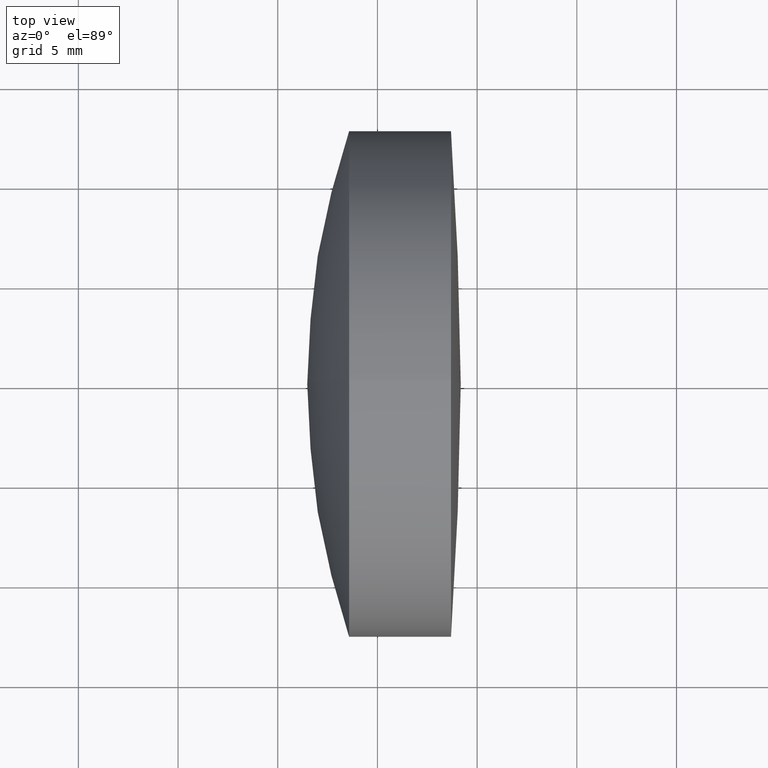
[diagram: clean part render]
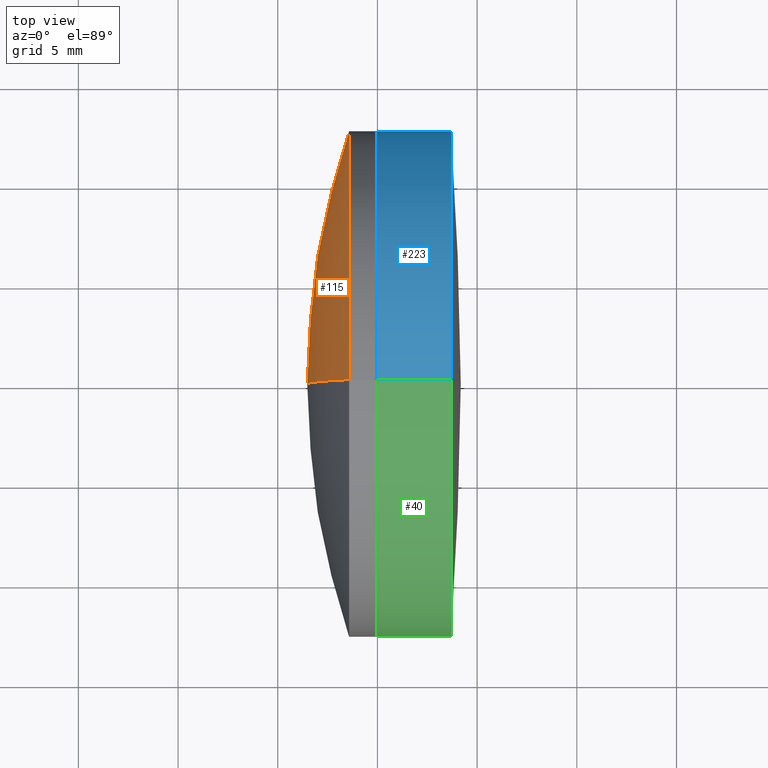
[diagram: same view with three faces highlighted in distinct colors, each labeled with its STEP entity id]
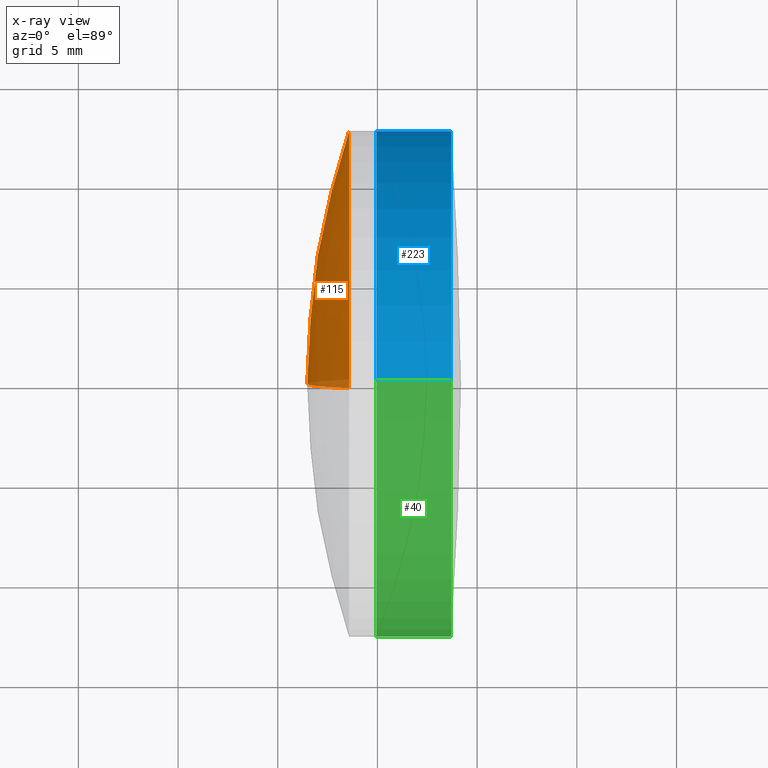
[diagram: x-ray of the same camera — body ghosted, the three highlighted faces saturated]
A machine part, top view with three faces highlighted in distinct colors.
The next image is the same camera in x-ray (body ghosted, the three faces saturated) — at least one of them is partly hidden behind the body in this view.
Their STEP definitions:

[orange] entity #115 — the highlighted spherical surface has radius 39.48 mm.
#44 = ORIENTED_EDGE ( 'NONE', *, *, #271, .T. ) ;
#48 = CIRCLE ( 'NONE', #300, 39.47999999999997600 ) ;
#51 = VERTEX_POINT ( 'NONE', #229 ) ;
#54 = ORIENTED_EDGE ( 'NONE', *, *, #148, .F. ) ;
#59 = VERTEX_POINT ( 'NONE', #279 ) ;
#65 = DIRECTION ( 'NONE',  ( -1.000000000000000000, -0.0000000000000000000, -0.0000000000000000000 ) ) ;
#66 = DIRECTION ( 'NONE',  ( -0.0000000000000000000, -1.000000000000000000, -0.0000000000000000000 ) ) ;
#71 = EDGE_CURVE ( 'NONE', #59, #51, #306, .T. ) ;
#80 = CARTESIAN_POINT ( 'NONE',  ( 330.9589865545651700, 0.0000000000000000000, 8.575898305430526300E-015 ) ) ;
#86 = AXIS2_PLACEMENT_3D ( 'NONE', #256, #66, #151 ) ;
#97 = ORIENTED_EDGE ( 'NONE', *, *, #71, .T. ) ;
#109 = DIRECTION ( 'NONE',  ( 0.0000000000000000000, 0.0000000000000000000, 1.000000000000000000 ) ) ;
#115 = ADVANCED_FACE ( 'NONE', ( #230 ), #199, .T. ) ;
#116 = DIRECTION ( 'NONE',  ( 0.0000000000000000000, 1.224646799147353200E-016, -1.000000000000000000 ) ) ;
#122 = CARTESIAN_POINT ( 'NONE',  ( 330.9589865545651700, 0.0000000000000000000, 8.575898305430526300E-015 ) ) ;
#148 = EDGE_CURVE ( 'NONE', #59, #284, #48, .T. ) ;
#151 = DIRECTION ( 'NONE',  ( 0.0000000000000000000, 0.0000000000000000000, -1.000000000000000000 ) ) ;
#162 = CIRCLE ( 'NONE', #194, 39.47999999999997600 ) ;
#194 = AXIS2_PLACEMENT_3D ( 'NONE', #80, #272, #109 ) ;
#199 = SPHERICAL_SURFACE ( 'NONE', #86, 39.47999999999997600 ) ;
#222 = DIRECTION ( 'NONE',  ( 0.0000000000000000000, 0.0000000000000000000, 1.000000000000000000 ) ) ;
#229 = CARTESIAN_POINT ( 'NONE',  ( 293.5774349548790400, 0.0000000000000000000, -12.69999999999999900 ) ) ;
#230 = FACE_OUTER_BOUND ( 'NONE', #325, .T. ) ;
#253 = CARTESIAN_POINT ( 'NONE',  ( 293.5774349548790400, 0.0000000000000000000, 0.0000000000000000000 ) ) ;
#256 = CARTESIAN_POINT ( 'NONE',  ( 330.9589865545651700, 0.0000000000000000000, 8.575898305430526300E-015 ) ) ;
#271 = EDGE_CURVE ( 'NONE', #51, #284, #162, .T. ) ;
#272 = DIRECTION ( 'NONE',  ( 0.0000000000000000000, 1.000000000000000000, -0.0000000000000000000 ) ) ;
#279 = CARTESIAN_POINT ( 'NONE',  ( 293.5774349548790400, -1.555301434917138200E-015, 12.70000000000000600 ) ) ;
#284 = VERTEX_POINT ( 'NONE', #320 ) ;
#290 = AXIS2_PLACEMENT_3D ( 'NONE', #253, #65, #222 ) ;
#300 = AXIS2_PLACEMENT_3D ( 'NONE', #122, #301, #116 ) ;
#301 = DIRECTION ( 'NONE',  ( 0.0000000000000000000, -1.000000000000000000, -1.224646799147353200E-016 ) ) ;
#306 = CIRCLE ( 'NONE', #290, 12.70000000000000800 ) ;
#320 = CARTESIAN_POINT ( 'NONE',  ( 291.4789865545652100, 0.0000000000000000000, 6.158445523913652300E-015 ) ) ;
#325 = EDGE_LOOP ( 'NONE', ( #54, #97, #44 ) ) ;

[blue] entity #223 — the highlighted cylindrical surface (partial cylindrical patch) has radius 12.7 mm, axis along (-1, -0, -0).
#1 = EDGE_CURVE ( 'NONE', #163, #24, #105, .T. ) ;
#4 = VERTEX_POINT ( 'NONE', #100 ) ;
#5 = EDGE_LOOP ( 'NONE', ( #139, #215, #315, #270 ) ) ;
#12 = CARTESIAN_POINT ( 'NONE',  ( 298.6900972909085700, 1.555301434917140200E-015, -12.70000000000001000 ) ) ;
#24 = VERTEX_POINT ( 'NONE', #310 ) ;
#25 = VECTOR ( 'NONE', #138, 1000.000000000000000 ) ;
#36 = VECTOR ( 'NONE', #155, 1000.000000000000000 ) ;
#77 = CARTESIAN_POINT ( 'NONE',  ( -0.5519199926577972300, 0.0000000000000000000, 0.0000000000000000000 ) ) ;
#79 = AXIS2_PLACEMENT_3D ( 'NONE', #165, #342, #190 ) ;
#85 = FACE_OUTER_BOUND ( 'NONE', #5, .T. ) ;
#100 = CARTESIAN_POINT ( 'NONE',  ( 294.9373187479075700, 0.0000000000000000000, 12.70000000000003100 ) ) ;
#105 = LINE ( 'NONE', #233, #36 ) ;
#128 = VERTEX_POINT ( 'NONE', #220 ) ;
#138 = DIRECTION ( 'NONE',  ( -1.000000000000000000, -0.0000000000000000000, -0.0000000000000000000 ) ) ;
#139 = ORIENTED_EDGE ( 'NONE', *, *, #243, .T. ) ;
#140 = DIRECTION ( 'NONE',  ( -1.000000000000000000, -0.0000000000000000000, -0.0000000000000000000 ) ) ;
#155 = DIRECTION ( 'NONE',  ( -1.000000000000000000, -0.0000000000000000000, -0.0000000000000000000 ) ) ;
#158 = AXIS2_PLACEMENT_3D ( 'NONE', #293, #140, #319 ) ;
#163 = VERTEX_POINT ( 'NONE', #12 ) ;
#165 = CARTESIAN_POINT ( 'NONE',  ( 294.9373187479075700, 0.0000000000000000000, 0.0000000000000000000 ) ) ;
#167 = DIRECTION ( 'NONE',  ( -1.000000000000000000, -0.0000000000000000000, -0.0000000000000000000 ) ) ;
#171 = CIRCLE ( 'NONE', #79, 12.70000000000002600 ) ;
#176 = AXIS2_PLACEMENT_3D ( 'NONE', #77, #167, #314 ) ;
#190 = DIRECTION ( 'NONE',  ( 0.0000000000000000000, 0.0000000000000000000, 1.000000000000000000 ) ) ;
#202 = EDGE_CURVE ( 'NONE', #128, #4, #308, .T. ) ;
#211 = EDGE_CURVE ( 'NONE', #4, #24, #171, .T. ) ;
#215 = ORIENTED_EDGE ( 'NONE', *, *, #1, .T. ) ;
#219 = CYLINDRICAL_SURFACE ( 'NONE', #176, 12.70000000000001700 ) ;
#220 = CARTESIAN_POINT ( 'NONE',  ( 298.6900972909085700, 0.0000000000000000000, 12.70000000000001000 ) ) ;
#223 = ADVANCED_FACE ( 'NONE', ( #85 ), #219, .T. ) ;
#233 = CARTESIAN_POINT ( 'NONE',  ( -0.5519199926577972300, 1.555301434917140600E-015, -12.70000000000001700 ) ) ;
#243 = EDGE_CURVE ( 'NONE', #128, #163, #289, .T. ) ;
#252 = CARTESIAN_POINT ( 'NONE',  ( -0.5519199926577972300, 0.0000000000000000000, 12.70000000000001700 ) ) ;
#270 = ORIENTED_EDGE ( 'NONE', *, *, #202, .F. ) ;
#289 = CIRCLE ( 'NONE', #158, 12.70000000000001000 ) ;
#293 = CARTESIAN_POINT ( 'NONE',  ( 298.6900972909085700, 0.0000000000000000000, 0.0000000000000000000 ) ) ;
#308 = LINE ( 'NONE', #252, #25 ) ;
#310 = CARTESIAN_POINT ( 'NONE',  ( 294.9373187479075700, 1.555301434917142400E-015, -12.70000000000002400 ) ) ;
#314 = DIRECTION ( 'NONE',  ( 0.0000000000000000000, 0.0000000000000000000, 1.000000000000000000 ) ) ;
#315 = ORIENTED_EDGE ( 'NONE', *, *, #211, .F. ) ;
#319 = DIRECTION ( 'NONE',  ( 0.0000000000000000000, 0.0000000000000000000, 1.000000000000000000 ) ) ;
#342 = DIRECTION ( 'NONE',  ( -1.000000000000000000, -0.0000000000000000000, -0.0000000000000000000 ) ) ;

[green] entity #40 — the highlighted cylindrical surface (partial cylindrical patch) has radius 12.7 mm, axis along (-1, -0, -0).
#1 = EDGE_CURVE ( 'NONE', #163, #24, #105, .T. ) ;
#3 = CIRCLE ( 'NONE', #226, 12.70000000000001000 ) ;
#4 = VERTEX_POINT ( 'NONE', #100 ) ;
#12 = CARTESIAN_POINT ( 'NONE',  ( 298.6900972909085700, 1.555301434917140200E-015, -12.70000000000001000 ) ) ;
#20 = CIRCLE ( 'NONE', #141, 12.70000000000002600 ) ;
#24 = VERTEX_POINT ( 'NONE', #310 ) ;
#25 = VECTOR ( 'NONE', #138, 1000.000000000000000 ) ;
#26 = DIRECTION ( 'NONE',  ( -1.000000000000000000, -0.0000000000000000000, -0.0000000000000000000 ) ) ;
#29 = DIRECTION ( 'NONE',  ( -1.000000000000000000, -0.0000000000000000000, -0.0000000000000000000 ) ) ;
#36 = VECTOR ( 'NONE', #155, 1000.000000000000000 ) ;
#40 = ADVANCED_FACE ( 'NONE', ( #244 ), #180, .T. ) ;
#84 = EDGE_LOOP ( 'NONE', ( #268, #156, #288, #203 ) ) ;
#100 = CARTESIAN_POINT ( 'NONE',  ( 294.9373187479075700, 0.0000000000000000000, 12.70000000000003100 ) ) ;
#105 = LINE ( 'NONE', #233, #36 ) ;
#127 = CARTESIAN_POINT ( 'NONE',  ( -0.5519199926577972300, 0.0000000000000000000, 0.0000000000000000000 ) ) ;
#128 = VERTEX_POINT ( 'NONE', #220 ) ;
#138 = DIRECTION ( 'NONE',  ( -1.000000000000000000, -0.0000000000000000000, -0.0000000000000000000 ) ) ;
#141 = AXIS2_PLACEMENT_3D ( 'NONE', #193, #29, #216 ) ;
#155 = DIRECTION ( 'NONE',  ( -1.000000000000000000, -0.0000000000000000000, -0.0000000000000000000 ) ) ;
#156 = ORIENTED_EDGE ( 'NONE', *, *, #295, .T. ) ;
#163 = VERTEX_POINT ( 'NONE', #12 ) ;
#180 = CYLINDRICAL_SURFACE ( 'NONE', #234, 12.70000000000001700 ) ;
#193 = CARTESIAN_POINT ( 'NONE',  ( 294.9373187479075700, 0.0000000000000000000, 0.0000000000000000000 ) ) ;
#202 = EDGE_CURVE ( 'NONE', #128, #4, #308, .T. ) ;
#203 = ORIENTED_EDGE ( 'NONE', *, *, #264, .F. ) ;
#213 = DIRECTION ( 'NONE',  ( 0.0000000000000000000, 0.0000000000000000000, 1.000000000000000000 ) ) ;
#216 = DIRECTION ( 'NONE',  ( 0.0000000000000000000, 0.0000000000000000000, 1.000000000000000000 ) ) ;
#217 = CARTESIAN_POINT ( 'NONE',  ( 298.6900972909085700, 0.0000000000000000000, 0.0000000000000000000 ) ) ;
#220 = CARTESIAN_POINT ( 'NONE',  ( 298.6900972909085700, 0.0000000000000000000, 12.70000000000001000 ) ) ;
#226 = AXIS2_PLACEMENT_3D ( 'NONE', #217, #26, #213 ) ;
#233 = CARTESIAN_POINT ( 'NONE',  ( -0.5519199926577972300, 1.555301434917140600E-015, -12.70000000000001700 ) ) ;
#234 = AXIS2_PLACEMENT_3D ( 'NONE', #127, #336, #333 ) ;
#244 = FACE_OUTER_BOUND ( 'NONE', #84, .T. ) ;
#252 = CARTESIAN_POINT ( 'NONE',  ( -0.5519199926577972300, 0.0000000000000000000, 12.70000000000001700 ) ) ;
#264 = EDGE_CURVE ( 'NONE', #24, #4, #20, .T. ) ;
#268 = ORIENTED_EDGE ( 'NONE', *, *, #1, .F. ) ;
#288 = ORIENTED_EDGE ( 'NONE', *, *, #202, .T. ) ;
#295 = EDGE_CURVE ( 'NONE', #163, #128, #3, .T. ) ;
#308 = LINE ( 'NONE', #252, #25 ) ;
#310 = CARTESIAN_POINT ( 'NONE',  ( 294.9373187479075700, 1.555301434917142400E-015, -12.70000000000002400 ) ) ;
#333 = DIRECTION ( 'NONE',  ( 0.0000000000000000000, 0.0000000000000000000, 1.000000000000000000 ) ) ;
#336 = DIRECTION ( 'NONE',  ( -1.000000000000000000, -0.0000000000000000000, -0.0000000000000000000 ) ) ;